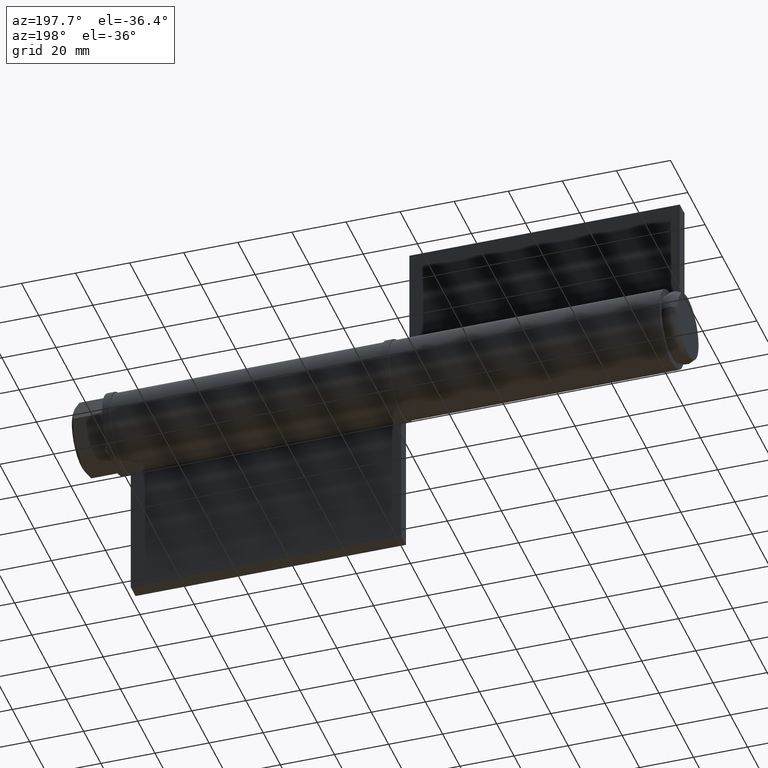
[diagram: clean part render]
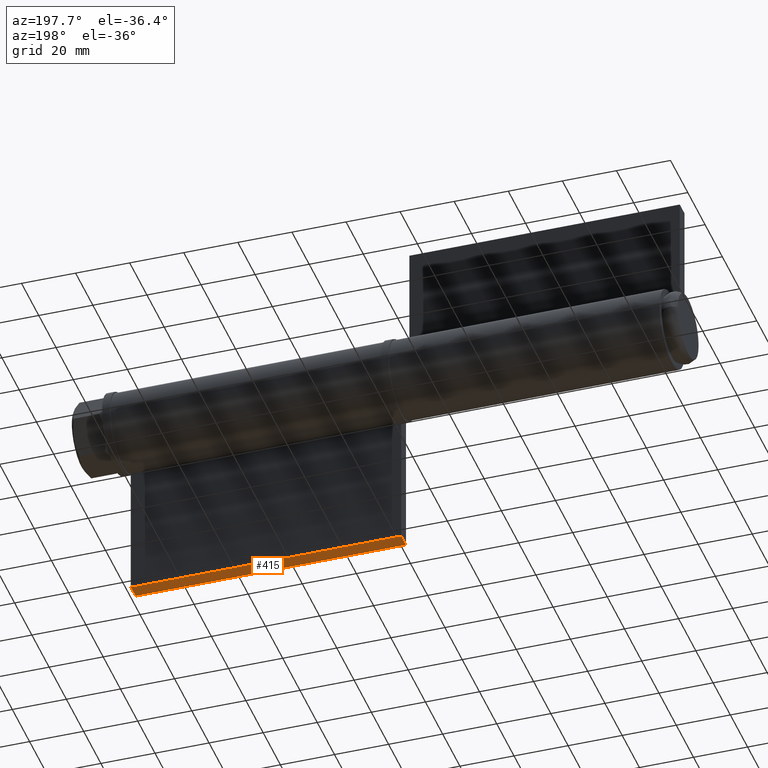
[diagram: same view with one face highlighted and labeled with its STEP entity id]
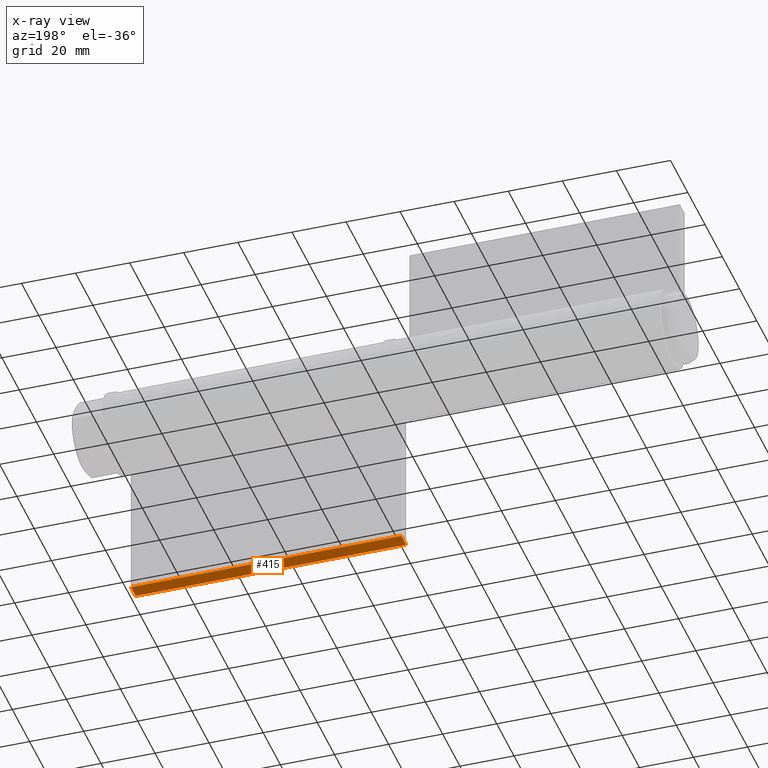
[diagram: x-ray of the same camera — body ghosted, the highlighted face saturated]
A machine part, auxiliary view. The second image highlights one B-rep face of the part: STEP entity #415.
The next image is the same camera in x-ray: the body ghosted, the highlighted face saturated — about 0% of this face is hidden behind the body in this view.
In plain terms, the highlighted planar face has unit normal (0, -0, -1).
Its self-contained STEP definition (entity closure, byte-faithful):
#50=LINE('',#720,#70);
#53=LINE('',#726,#73);
#54=LINE('',#728,#74);
#55=LINE('',#729,#75);
#70=VECTOR('',#518,100.);
#73=VECTOR('',#523,5.5);
#74=VECTOR('',#524,100.);
#75=VECTOR('',#525,5.5);
#130=FACE_OUTER_BOUND('',#160,.T.);
#160=EDGE_LOOP('',(#306,#307,#308,#309));
#212=VERTEX_POINT('',#717);
#213=VERTEX_POINT('',#719);
#215=VERTEX_POINT('',#725);
#216=VERTEX_POINT('',#727);
#249=EDGE_CURVE('',#213,#212,#50,.T.);
#252=EDGE_CURVE('',#212,#215,#53,.T.);
#253=EDGE_CURVE('',#216,#215,#54,.T.);
#254=EDGE_CURVE('',#216,#213,#55,.T.);
#306=ORIENTED_EDGE('',*,*,#252,.T.);
#307=ORIENTED_EDGE('',*,*,#253,.F.);
#308=ORIENTED_EDGE('',*,*,#254,.T.);
#309=ORIENTED_EDGE('',*,*,#249,.T.);
#394=PLANE('',#452);
#415=ADVANCED_FACE('',(#130),#394,.T.);
#452=AXIS2_PLACEMENT_3D('',#724,#521,#522);
#518=DIRECTION('',(0.,0.,1.));
#521=DIRECTION('center_axis',(-1.,0.,0.));
#522=DIRECTION('ref_axis',(0.,0.,1.));
#523=DIRECTION('',(0.,1.,0.));
#524=DIRECTION('',(0.,0.,1.));
#525=DIRECTION('',(0.,-1.,0.));
#717=CARTESIAN_POINT('',(-61.,-6.66133814775094E-15,100.));
#719=CARTESIAN_POINT('',(-61.,-6.66133814775094E-15,0.));
#720=CARTESIAN_POINT('',(-61.,-6.66133814775094E-15,0.));
#724=CARTESIAN_POINT('Origin',(-61.,-6.66133814775094E-15,0.));
#725=CARTESIAN_POINT('',(-61.,5.49999999999999,100.));
#726=CARTESIAN_POINT('',(-61.,5.49999999999999,100.));
#727=CARTESIAN_POINT('',(-61.,5.49999999999999,0.));
#728=CARTESIAN_POINT('',(-61.,5.49999999999999,0.));
#729=CARTESIAN_POINT('',(-61.,5.49999999999999,0.));